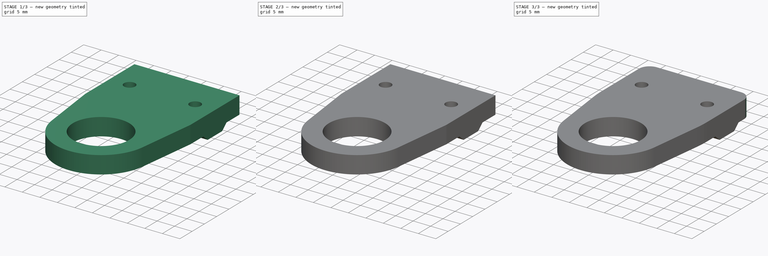
[diagram: build sequence overview — one tinted view per stage of 3, left to right]
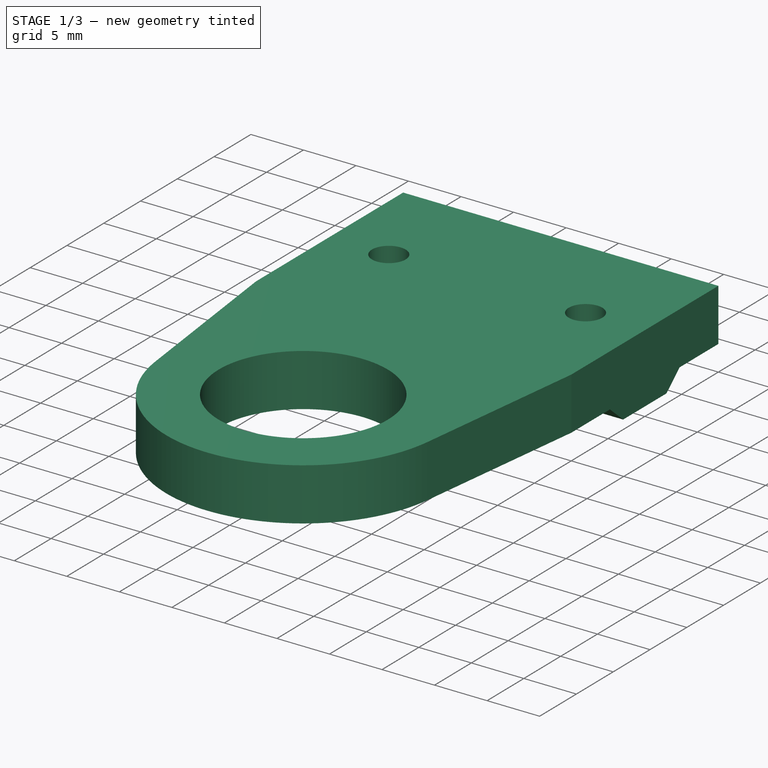
[diagram: stage 1 of 3 — iso view after this stage's code; geometry added in this stage tinted green]
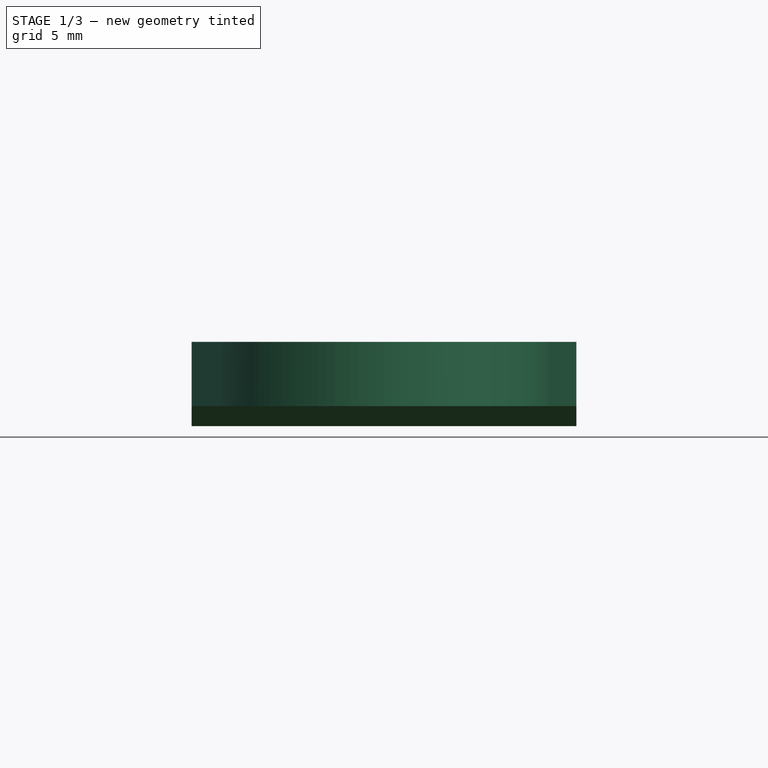
[diagram: stage 1 of 3 — front view after this stage's code; geometry added in this stage tinted green]
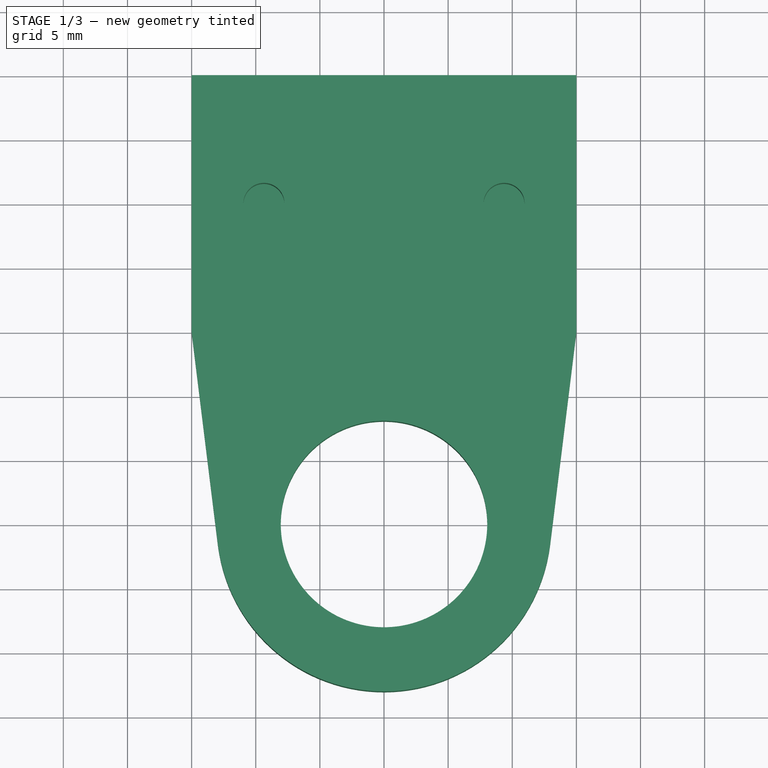
[diagram: stage 1 of 3 — top view after this stage's code; geometry added in this stage tinted green]
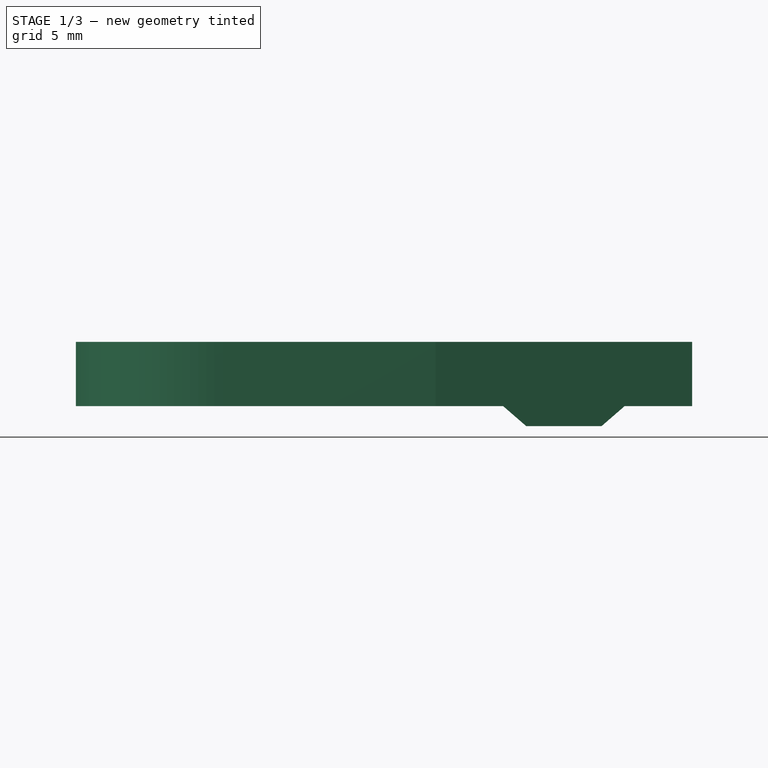
[diagram: stage 1 of 3 — right view after this stage's code; geometry added in this stage tinted green]
FCSTD DOCUMENT  (FreeCAD 0.20R29603 (Git))
Label: suporte-microrolamento
License: All rights reserved
LicenseURL: http://en.wikipedia.org/wiki/All_rights_reserved
objects: Sketcher::SketchObject×2, PartDesign::Pad×2, PartDesign::Fillet×2, PartDesign::Pocket×1, PartDesign::Body×1
note: 13 computed .brp shape members not serialized (recipe doc carries the construction recipe); baked Part::Feature solids carry a one-line shape summary decoded from their .brp

FEATURE [Sketcher::SketchObject] Sketch
  FullyConstrained = true
  MapMode = 5
  Support = -> [XY_Plane]
  sketch-geometry (17):
    g0: LineSegment StartX=-15 StartY=10 StartZ=0 EndX=15 EndY=10 EndZ=0
    g1: LineSegment StartX=15 StartY=10 StartZ=0 EndX=15 EndY=-10 EndZ=0
    g2: LineSegment StartX=15 StartY=-10 StartZ=0 EndX=-15 EndY=-10 EndZ=0
    g3: LineSegment StartX=-15 StartY=-10 StartZ=0 EndX=-15 EndY=10 EndZ=0
    g4: LineSegment StartX=-15 StartY=10 StartZ=0 EndX=15 EndY=-10 EndZ=0
    g5: LineSegment StartX=15 StartY=10 StartZ=0 EndX=-15 EndY=-10 EndZ=0
    g6: Circle CenterX=0 CenterY=-25 CenterZ=0 NormalX=0 NormalY=0 NormalZ=1 AngleXU=0 Radius=8.05
    g7: ArcOfCircle CenterX=0 CenterY=-25 CenterZ=0 NormalX=0 NormalY=0 NormalZ=1 AngleXU=0 Radius=13.05 StartAngle=3.26437 EndAngle=6.16041
    g8: Circle CenterX=0 CenterY=-25 CenterZ=0 NormalX=0 NormalY=0 NormalZ=1 AngleXU=0 Radius=13.05
    g9: LineSegment StartX=0 StartY=0 StartZ=0 EndX=9.3625 EndY=0 EndZ=0
    g10: LineSegment StartX=0 StartY=0 StartZ=0 EndX=-9.3625 EndY=0 EndZ=0
    g11: Circle CenterX=-9.3625 CenterY=0 CenterZ=0 NormalX=0 NormalY=0 NormalZ=1 AngleXU=0 Radius=1.6
    g12: Circle CenterX=9.3625 CenterY=0 CenterZ=0 NormalX=0 NormalY=0 NormalZ=1 AngleXU=0 Radius=1.6
    g13: LineSegment StartX=-15 StartY=-10 StartZ=0 EndX=-12.9518 EndY=-26.5982 EndZ=0
    g14: LineSegment StartX=15 StartY=-10 StartZ=0 EndX=12.9518 EndY=-26.5982 EndZ=0
    g15: GeomPoint X=0 Y=-33.05 Z=0
    g16: GeomPoint X=0 Y=-38.05 Z=0
  constraints (43):
    c: Coincident(g0,g1)
    c: Coincident(g1,g2)
    c: Coincident(g2,g3)
    c: Coincident(g3,g0)
    c: Horizontal(g0)
    c: Horizontal(g2)
    c: Vertical(g1)
    c: Vertical(g3)
    c: Coincident(g4,g0)
    c: Coincident(g4,g1)
    c: Coincident(g5,g0)
    c: Coincident(g5,g3)
    c: PointOnObject(g-1,g4)
    c: PointOnObject(g-1,g5)
    c: DistanceX(g0,g0) = 30
    c: DistanceY(g3,g3) = 20
    c: Diameter(g6) = 16.1
    c: DistanceY(g6,g3) = 15
    c: Coincident(g7,g6)
    c: PointOnObject(g6,g-2)
    c: Coincident(g8,g6)
    c: Equal(g8,g7)
    c: Coincident(g9,g-1)
    c: Coincident(g10,g9)
    c: Equal(g10,g9)
    c: Horizontal(g9)
    c: Horizontal(g10)
    c: Coincident(g11,g10)
    c: Coincident(g12,g9)
    c: Equal(g12,g11)
    c: Radius(g12) = 1.6
    c: DistanceX(g11,g12) = 18.725
    c: Coincident(g13,g3)
    c: Coincident(g14,g1)
    c: Tangent(g8,g13)
    c: Horizontal(g13,g14)
    c: Coincident(g7,g13)
    c: Coincident(g14,g7)
    c: PointOnObject(g15,g6)
    c: PointOnObject(g16,g7)
    c: PointOnObject(g16,g-2)
    c: PointOnObject(g15,g-2)
    c: DistanceY(g16,g15) = 5
FEATURE [PartDesign::Pad] Pad
  Direction = (0,0,1)
  Length = 5
  Length2 = 10
  Profile = -> Sketch
  ReferenceAxis = -> Sketch [N_Axis]
  Type = 0
FEATURE [Sketcher::SketchObject] Sketch001
  FullyConstrained = true
  MapMode = 5
  Placement = pos=(-15,0,0) rot=(0.57735,-0.57735,-0.57735;2.0944rad)
  Support = -> [Pad]
  sketch-geometry (5):
    g0: LineSegment StartX=0 StartY=0 StartZ=0 EndX=-4.74 EndY=0 EndZ=0
    g1: LineSegment StartX=-4.74 StartY=0 StartZ=0 EndX=-2.94 EndY=-1.56 EndZ=0
    g2: LineSegment StartX=-2.94 StartY=-1.56 StartZ=0 EndX=2.94 EndY=-1.56 EndZ=0
    g3: LineSegment StartX=2.94 StartY=-1.56 StartZ=0 EndX=4.74 EndY=0 EndZ=0
    g4: LineSegment StartX=4.74 StartY=0 StartZ=0 EndX=0 EndY=0 EndZ=0
  constraints (14):
    c: Coincident(g0,g-1)
    c: Coincident(g0,g1)
    c: Coincident(g1,g2)
    c: Horizontal(g2)
    c: Coincident(g2,g3)
    c: Coincident(g3,g4)
    c: Coincident(g4,g0)
    c: Equal(g4,g0)
    c: Equal(g1,g3)
    c: Horizontal(g4)
    c: Horizontal(g0)
    c: DistanceX(g2,g2) = 5.88
    c: DistanceX(g0,g3) = 9.48
    c: DistanceY(g1,g0) = 1.56
FEATURE [PartDesign::Pad] Pad001
  BaseFeature = -> Pad
  Direction = (-1,0,0)
  Length = 10
  Length2 = 10
  Profile = -> Sketch001
  ReferenceAxis = -> Sketch001 [N_Axis]
  Reversed = true
  Type = 3
  UpToFace = -> Pad [Face4]
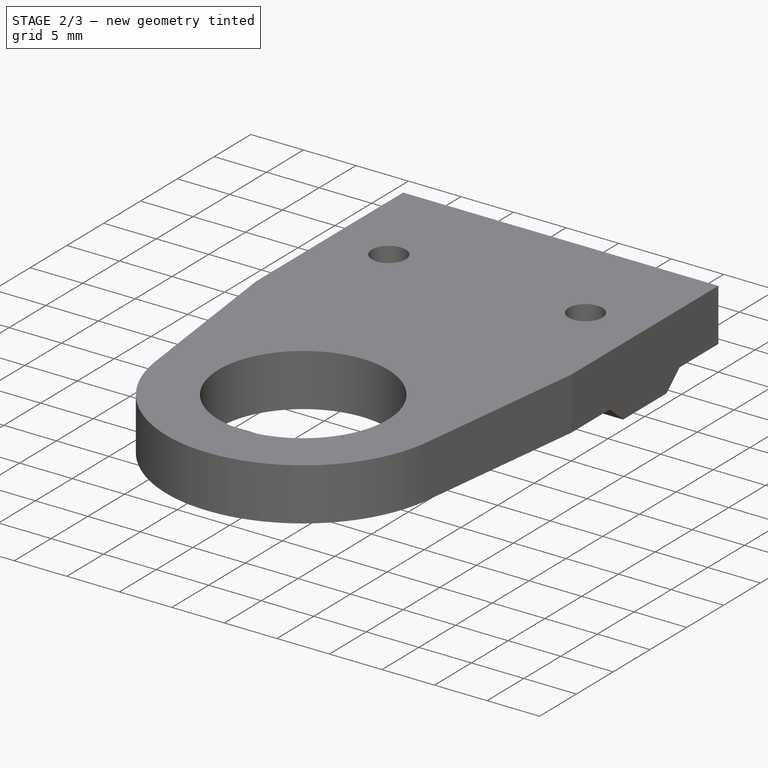
[diagram: stage 2 of 3 — iso view after this stage's code; geometry added in this stage tinted green]
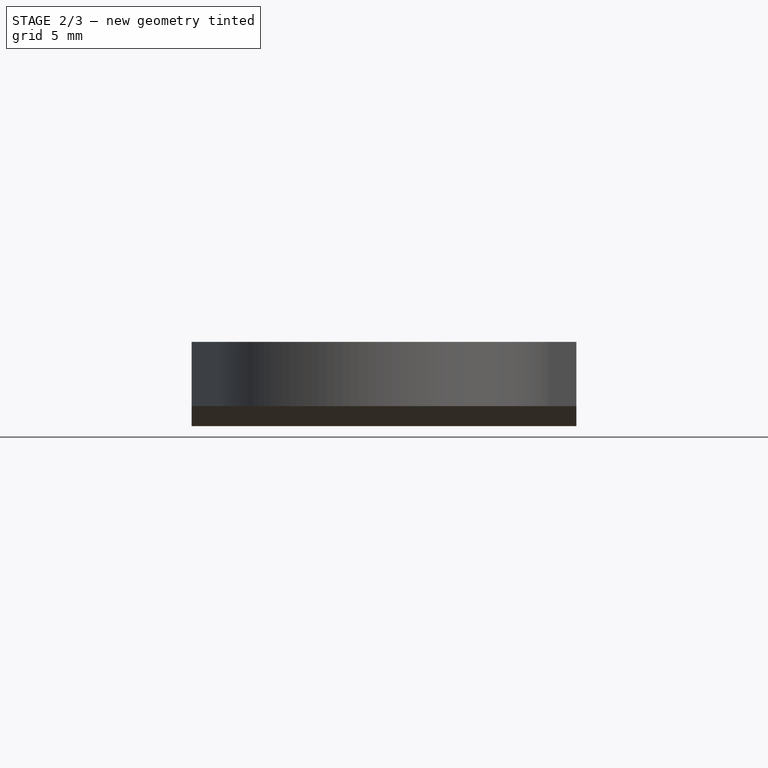
[diagram: stage 2 of 3 — front view after this stage's code; geometry added in this stage tinted green]
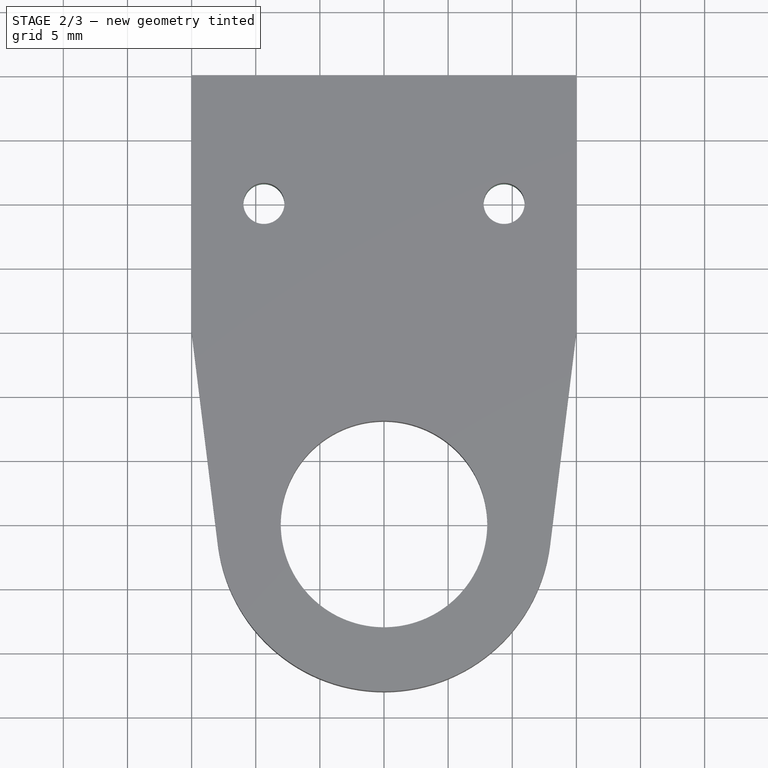
[diagram: stage 2 of 3 — top view after this stage's code; geometry added in this stage tinted green]
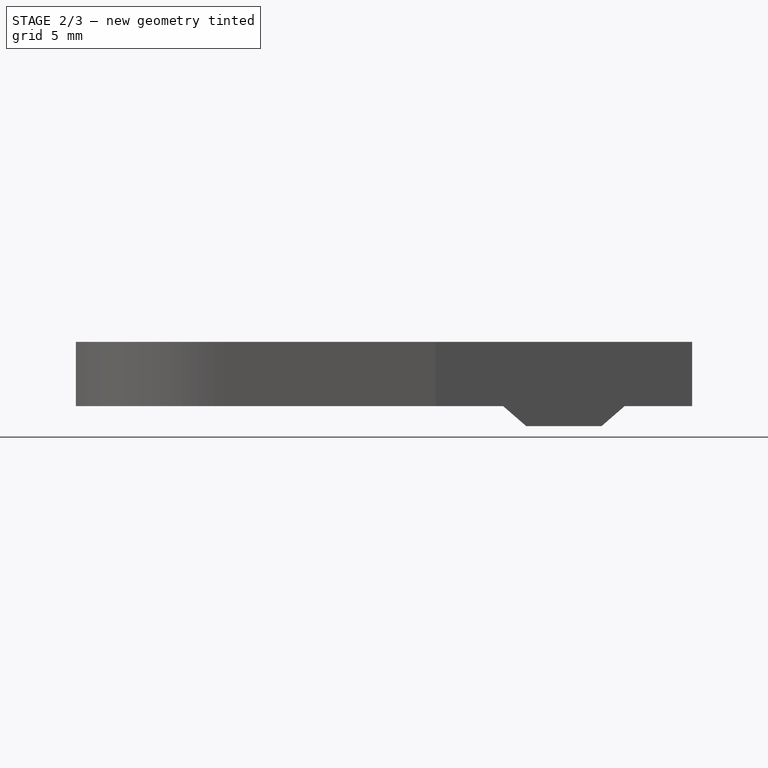
[diagram: stage 2 of 3 — right view after this stage's code; geometry added in this stage tinted green]
FEATURE [PartDesign::Pocket] Pocket
  BaseFeature = -> Pad001
  Direction = (0,0,-1)
  Length = 5
  Length2 = 5
  Profile = -> Pad001 [Face19,Face18,Face21,Face20]
  Type = 1
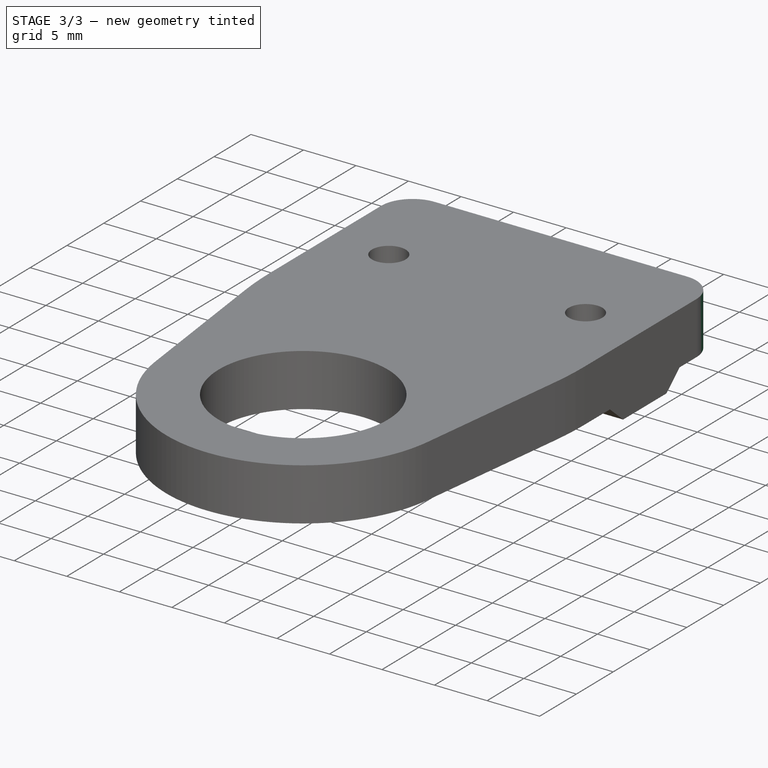
[diagram: stage 3 of 3 — iso view after this stage's code; geometry added in this stage tinted green]
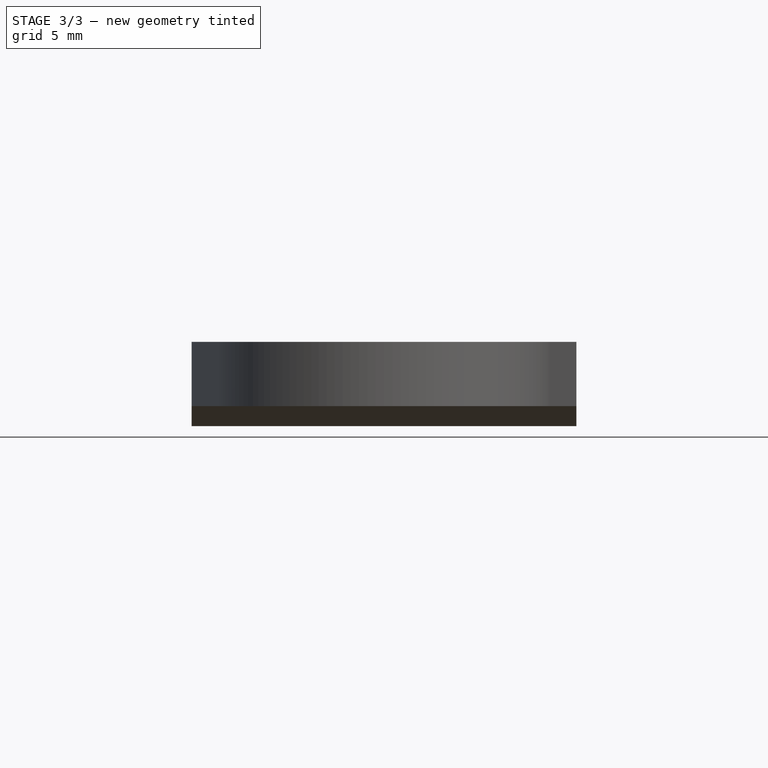
[diagram: stage 3 of 3 — front view after this stage's code; geometry added in this stage tinted green]
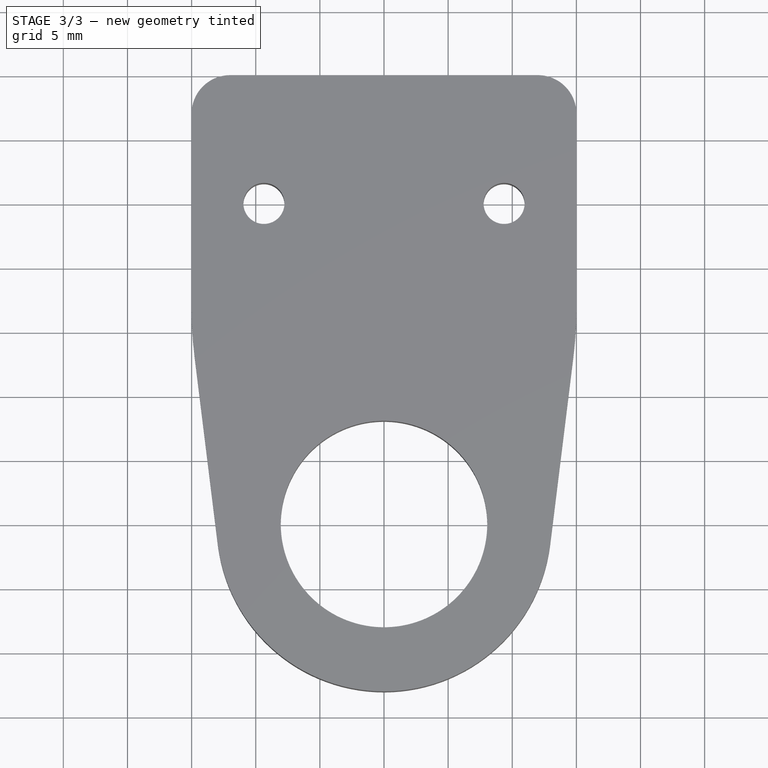
[diagram: stage 3 of 3 — top view after this stage's code; geometry added in this stage tinted green]
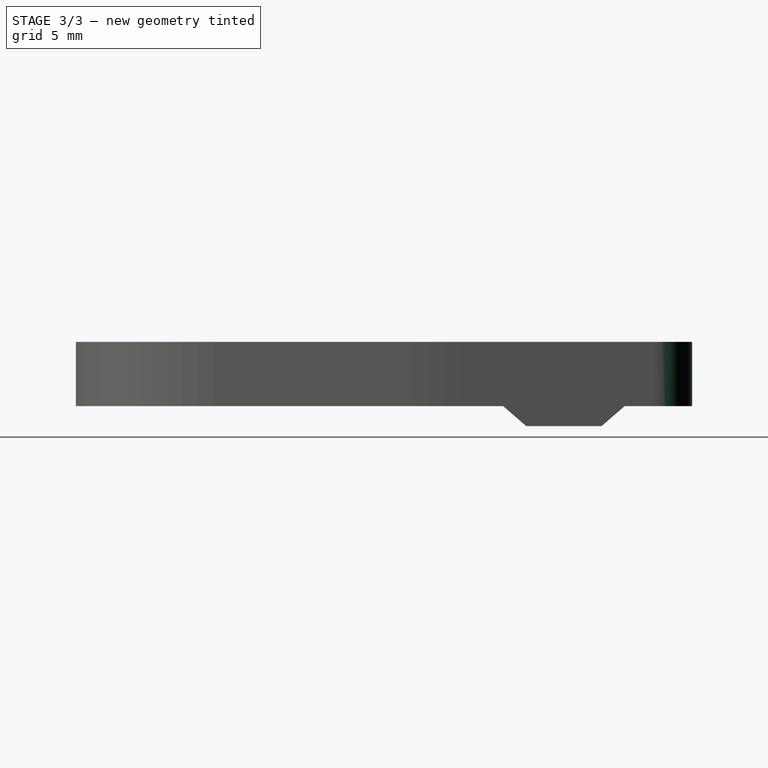
[diagram: stage 3 of 3 — right view after this stage's code; geometry added in this stage tinted green]
FEATURE [PartDesign::Fillet] Fillet
  Base = -> Pocket [Edge5,Edge24]
  BaseFeature = -> Pocket
  Radius = 3
  SupportTransform = false
  UseAllEdges = false
FEATURE [PartDesign::Fillet] Fillet001
  Base = -> Fillet [Edge40,Edge6]
  BaseFeature = -> Fillet
  Radius = 30
  SupportTransform = false
  UseAllEdges = false
FEATURE [PartDesign::Body] Body
  Group = -> [Sketch,Pad,Sketch001,Pad001,Pocket,Fillet,Fillet001]
  Origin = -> Origin
  Tip = -> Fillet001
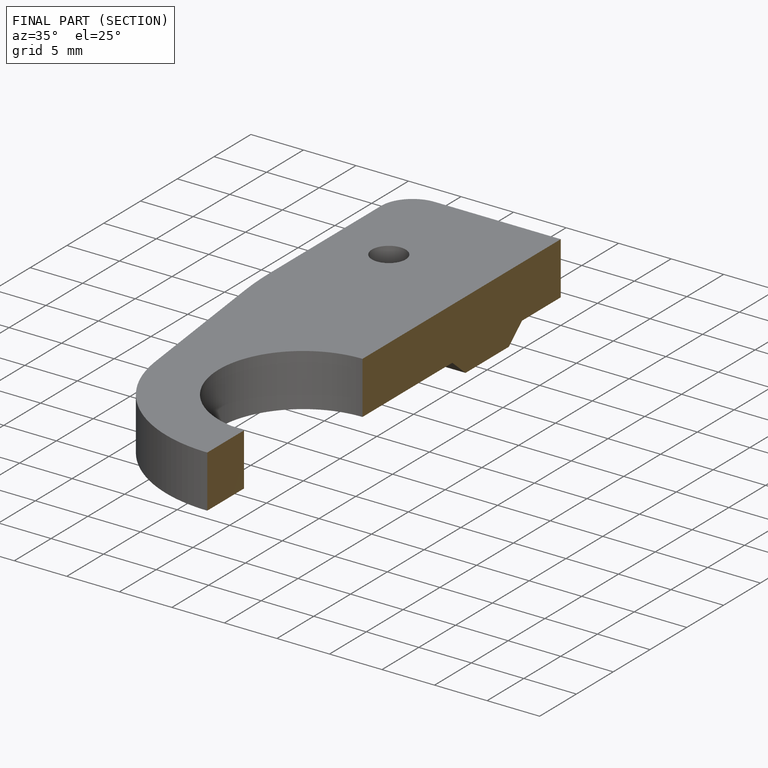
[diagram: finished part — half-section view (interior)]
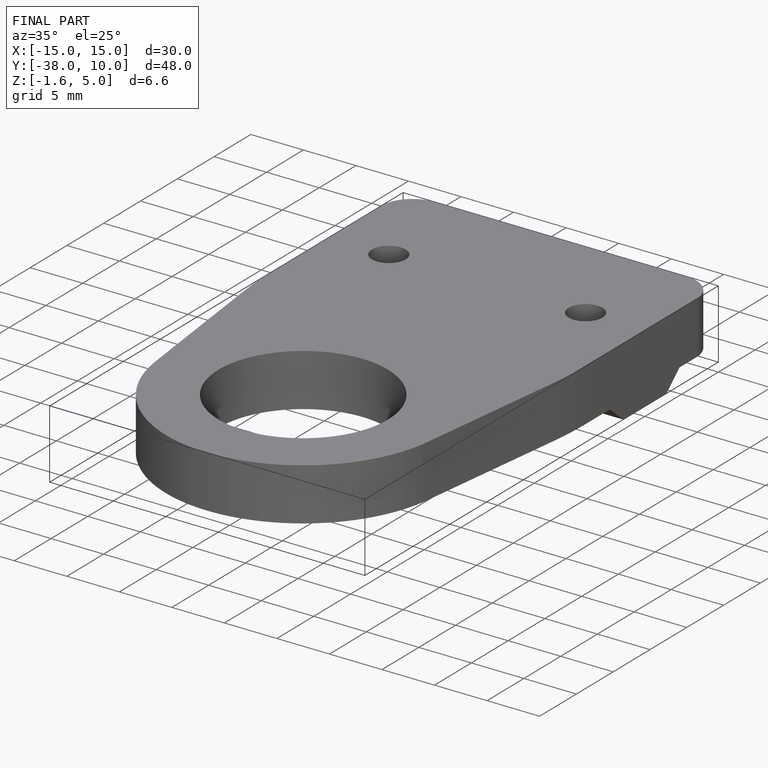
[diagram: finished part — iso view with bounding-box wireframe]
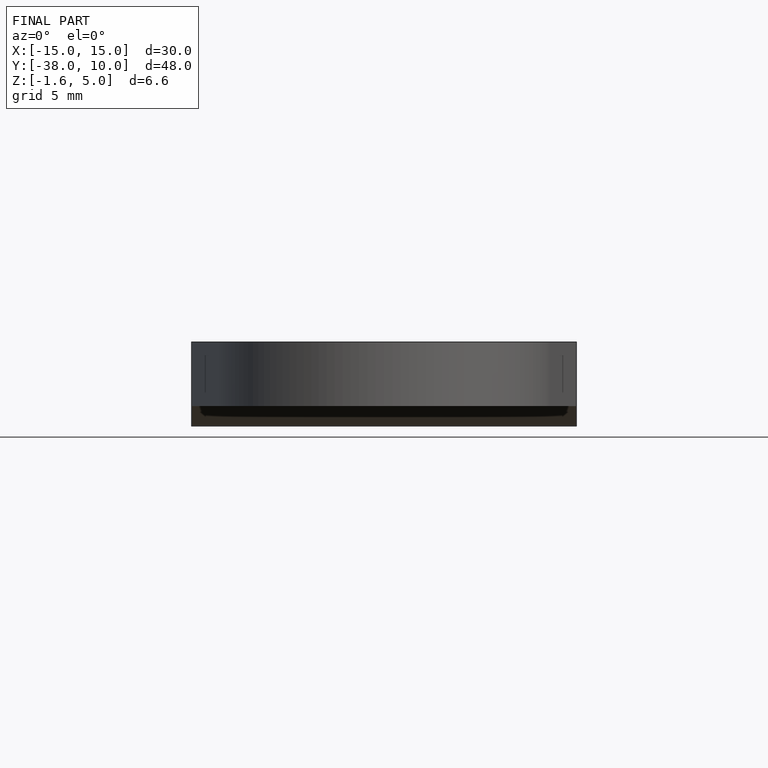
[diagram: finished part — front view with bounding-box wireframe]
